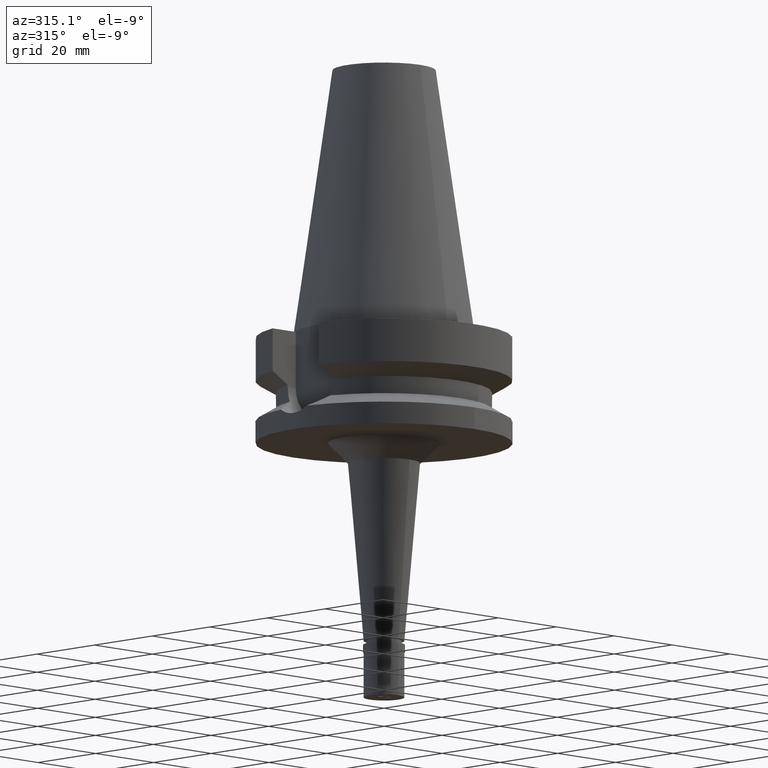
[diagram: clean part render]
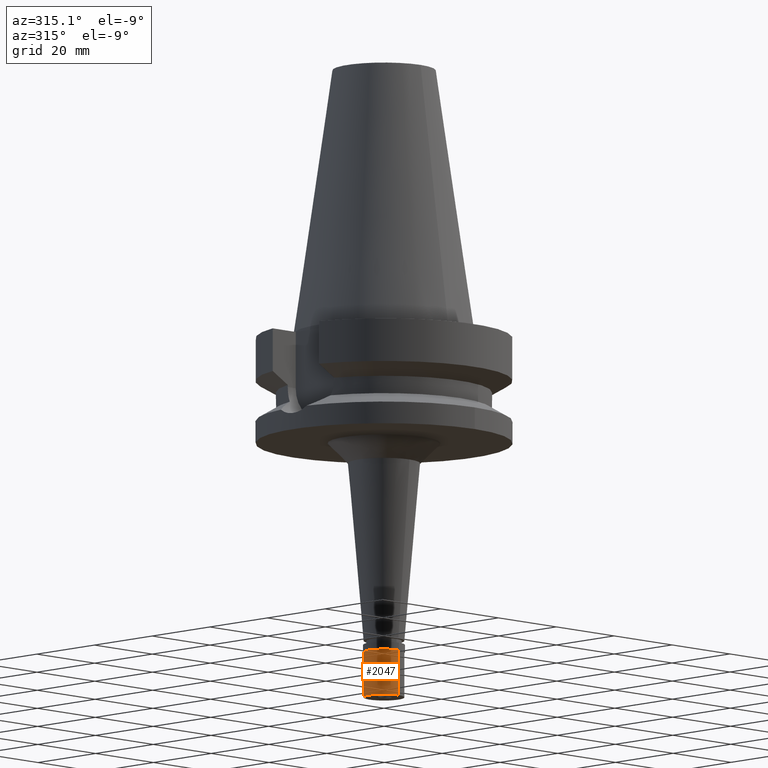
[diagram: same view with one face highlighted and labeled with its STEP entity id]
A machine part, auxiliary view. The second image highlights one B-rep face of the part: STEP entity #2047.
In plain terms, the highlighted cylindrical surface (edge-blend (fillet) strip) has radius 5 mm, axis along (0, 0, 1).
Its self-contained STEP definition (entity closure, byte-faithful):
#29 = CARTESIAN_POINT ( 'NONE',  ( 0.0000000000000000000, -5.000000000000000000, -13.00000000000000000 ) ) ;
#57 = CYLINDRICAL_SURFACE ( 'NONE', #1036, 5.000000000000000000 ) ;
#114 = DIRECTION ( 'NONE',  ( 0.0000000000000000000, 0.0000000000000000000, -1.000000000000000000 ) ) ;
#140 = LINE ( 'NONE', #838, #2828 ) ;
#156 = CARTESIAN_POINT ( 'NONE',  ( 0.0000000000000000000, 5.000000000000000000, -1.800000000000000044 ) ) ;
#277 = VECTOR ( 'NONE', #114, 1000.000000000000000 ) ;
#296 = VERTEX_POINT ( 'NONE', #156 ) ;
#471 = VERTEX_POINT ( 'NONE', #29 ) ;
#554 = CARTESIAN_POINT ( 'NONE',  ( 0.0000000000000000000, -5.000000000000000000, -1.800000000000000044 ) ) ;
#573 = ORIENTED_EDGE ( 'NONE', *, *, #1614, .F. ) ;
#615 = DIRECTION ( 'NONE',  ( 0.0000000000000000000, 0.0000000000000000000, -1.000000000000000000 ) ) ;
#753 = CIRCLE ( 'NONE', #1752, 5.000000000000000000 ) ;
#793 = ORIENTED_EDGE ( 'NONE', *, *, #1760, .T. ) ;
#838 = CARTESIAN_POINT ( 'NONE',  ( 0.0000000000000000000, 5.000000000000000000, -1.800000000000000044 ) ) ;
#886 = ORIENTED_EDGE ( 'NONE', *, *, #1079, .T. ) ;
#945 = EDGE_LOOP ( 'NONE', ( #793, #573, #2281, #886 ) ) ;
#957 = DIRECTION ( 'NONE',  ( 0.0000000000000000000, -1.000000000000000000, 0.0000000000000000000 ) ) ;
#1036 = AXIS2_PLACEMENT_3D ( 'NONE', #2603, #1827, #1860 ) ;
#1079 = EDGE_CURVE ( 'NONE', #296, #2418, #140, .T. ) ;
#1437 = LINE ( 'NONE', #1933, #277 ) ;
#1451 = DIRECTION ( 'NONE',  ( 0.0000000000000000000, 0.0000000000000000000, 1.000000000000000000 ) ) ;
#1543 = VERTEX_POINT ( 'NONE', #554 ) ;
#1614 = EDGE_CURVE ( 'NONE', #1543, #471, #1437, .T. ) ;
#1752 = AXIS2_PLACEMENT_3D ( 'NONE', #1967, #1451, #2212 ) ;
#1760 = EDGE_CURVE ( 'NONE', #2418, #471, #753, .T. ) ;
#1827 = DIRECTION ( 'NONE',  ( 0.0000000000000000000, 0.0000000000000000000, 1.000000000000000000 ) ) ;
#1860 = DIRECTION ( 'NONE',  ( 0.0000000000000000000, 1.000000000000000000, 0.0000000000000000000 ) ) ;
#1933 = CARTESIAN_POINT ( 'NONE',  ( 0.0000000000000000000, -5.000000000000000000, -1.800000000000000044 ) ) ;
#1967 = CARTESIAN_POINT ( 'NONE',  ( 0.0000000000000000000, 0.0000000000000000000, -13.00000000000000000 ) ) ;
#2047 = ADVANCED_FACE ( 'NONE', ( #2089 ), #57, .T. ) ;
#2089 = FACE_OUTER_BOUND ( 'NONE', #945, .T. ) ;
#2155 = EDGE_CURVE ( 'NONE', #1543, #296, #2977, .T. ) ;
#2212 = DIRECTION ( 'NONE',  ( 0.0000000000000000000, 1.000000000000000000, 0.0000000000000000000 ) ) ;
#2281 = ORIENTED_EDGE ( 'NONE', *, *, #2155, .T. ) ;
#2316 = DIRECTION ( 'NONE',  ( 0.0000000000000000000, 0.0000000000000000000, -1.000000000000000000 ) ) ;
#2361 = CARTESIAN_POINT ( 'NONE',  ( 0.0000000000000000000, 0.0000000000000000000, -1.800000000000000044 ) ) ;
#2418 = VERTEX_POINT ( 'NONE', #2904 ) ;
#2603 = CARTESIAN_POINT ( 'NONE',  ( 0.0000000000000000000, 0.0000000000000000000, -13.65000000000000036 ) ) ;
#2828 = VECTOR ( 'NONE', #615, 1000.000000000000000 ) ;
#2874 = AXIS2_PLACEMENT_3D ( 'NONE', #2361, #2316, #957 ) ;
#2904 = CARTESIAN_POINT ( 'NONE',  ( 0.0000000000000000000, 5.000000000000000000, -13.00000000000000000 ) ) ;
#2977 = CIRCLE ( 'NONE', #2874, 5.000000000000000000 ) ;